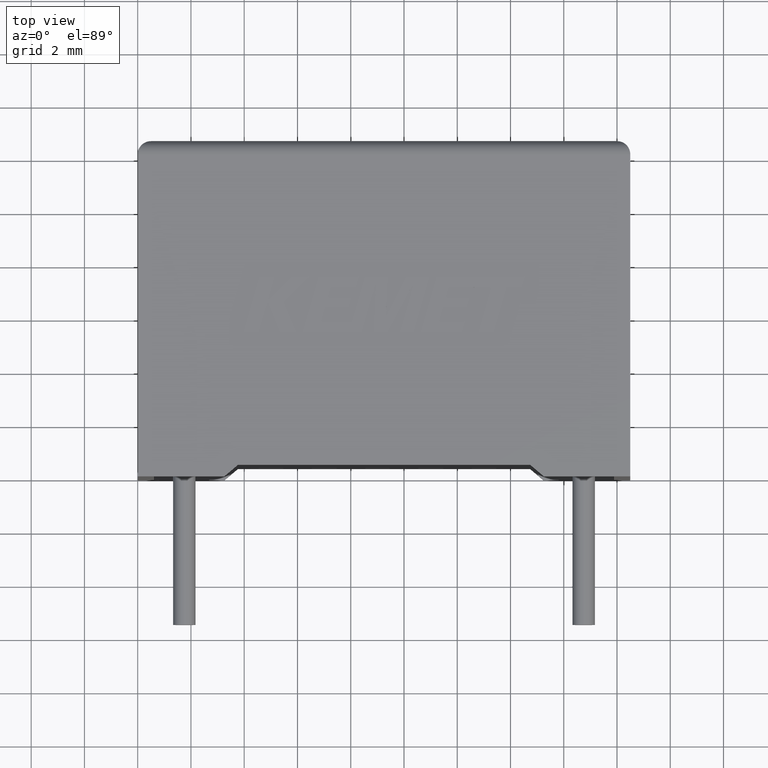
[diagram: clean part render]
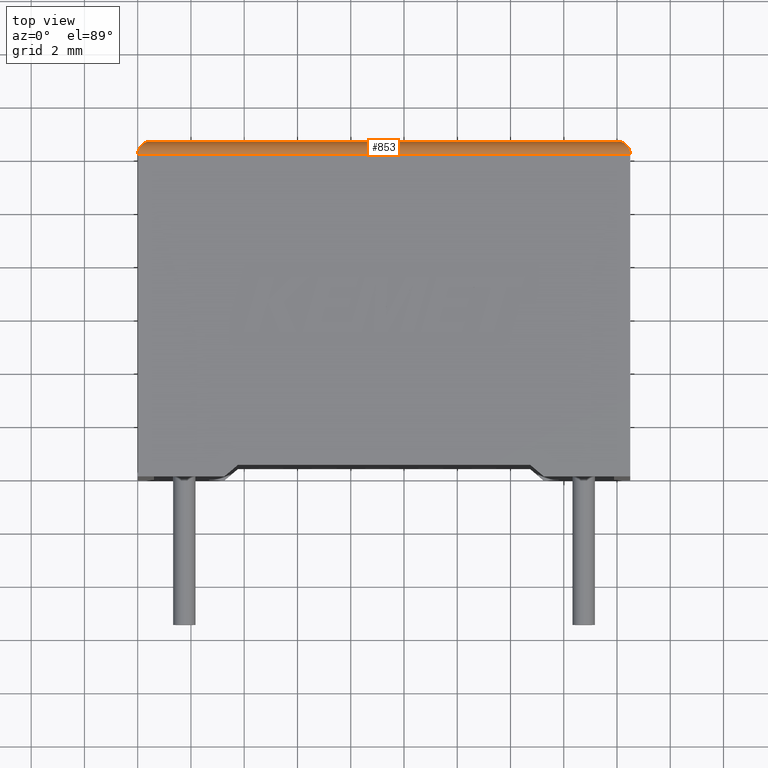
[diagram: same view with one face highlighted and labeled with its STEP entity id]
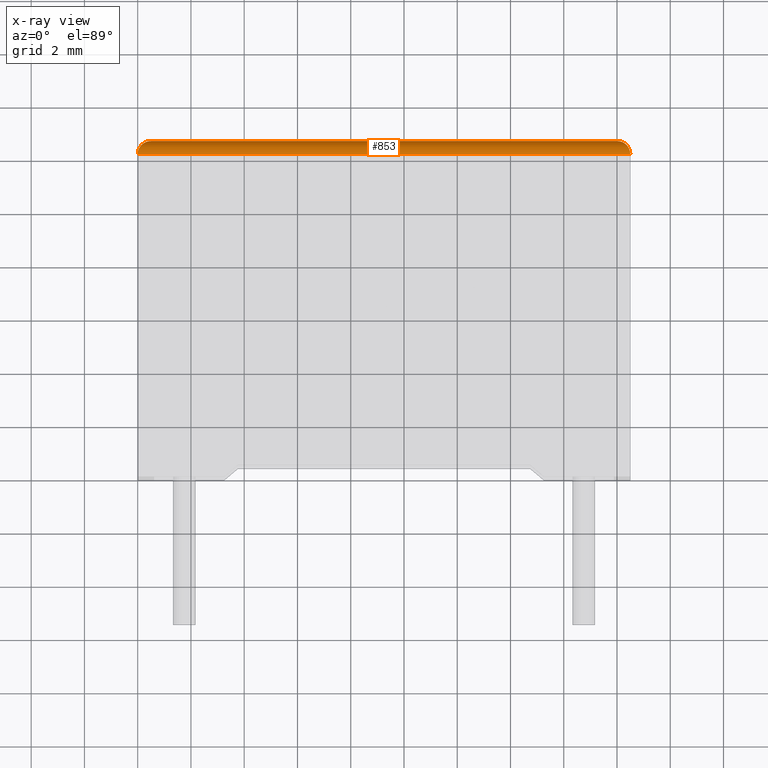
[diagram: x-ray of the same camera — body ghosted, the highlighted face saturated]
A machine part, top view. The second image highlights one B-rep face of the part: STEP entity #853.
The next image is the same camera in x-ray: the body ghosted, the highlighted face saturated — about 0% of this face is hidden behind the body in this view.
In plain terms, the highlighted cylindrical surface (edge-blend (fillet) strip) has radius 0.5 mm, axis along (-1, 0, 0).
Its self-contained STEP definition (entity closure, byte-faithful):
#21 = VECTOR ( 'NONE', #597, 1000.000000000000000 ) ;
#108 = AXIS2_PLACEMENT_3D ( 'NONE', #1175, #1003, #965 ) ;
#451 = FACE_OUTER_BOUND ( 'NONE', #2112, .T. ) ;
#552 = EDGE_CURVE ( 'NONE', #2448, #1392, #1306, .T. ) ;
#597 = DIRECTION ( 'NONE',  ( 1.000000000000000000, -0.000000000000000000, -0.000000000000000000 ) ) ;
#651 = CARTESIAN_POINT ( 'NONE',  ( 18.29289321881345032, 12.59999999999999609, 8.992893218813451384 ) ) ;
#664 = VECTOR ( 'NONE', #1843, 1000.000000000000000 ) ;
#675 = CYLINDRICAL_SURFACE ( 'NONE', #108, 0.5000000000000004441 ) ;
#845 = CARTESIAN_POINT ( 'NONE',  ( 18.00000000000000000, 12.59999999999999964, 8.699999999999999289 ) ) ;
#853 = ADVANCED_FACE ( 'NONE', ( #451 ), #675, .T. ) ;
#965 = DIRECTION ( 'NONE',  ( 0.000000000000000000, 0.000000000000000000, 1.000000000000000000 ) ) ;
#1003 = DIRECTION ( 'NONE',  ( -1.000000000000000000, 0.000000000000000000, 0.000000000000000000 ) ) ;
#1049 = CARTESIAN_POINT ( 'NONE',  ( 0.000000000000000000, 12.59999999999999964, 8.699999999999999289 ) ) ;
#1075 = LINE ( 'NONE', #1049, #21 ) ;
#1111 = CARTESIAN_POINT ( 'NONE',  ( 18.00000000000000000, 12.59999999999999964, 8.699999999999999289 ) ) ;
#1175 = CARTESIAN_POINT ( 'NONE',  ( 0.000000000000000000, 12.09999999999999964, 8.699999999999999289 ) ) ;
#1192 = ORIENTED_EDGE ( 'NONE', *, *, #2499, .F. ) ;
#1206 = ORIENTED_EDGE ( 'NONE', *, *, #2830, .F. ) ;
#1227 = CARTESIAN_POINT ( 'NONE',  ( 0.2071067811865475727, 12.59999999999999609, 8.992893218813451384 ) ) ;
#1231 = CARTESIAN_POINT ( 'NONE',  ( 0.000000000000000000, 12.09999999999999964, 9.199999999999999289 ) ) ;
#1306 =( BOUNDED_CURVE ( )  B_SPLINE_CURVE ( 3, ( #1596, #1341, #651, #1111 ),
 .UNSPECIFIED., .F., .T. ) 
 B_SPLINE_CURVE_WITH_KNOTS ( ( 4, 4 ),
 ( 3.141592653589793116, 4.712388980384689674 ),
 .UNSPECIFIED. ) 
 CURVE ( )  GEOMETRIC_REPRESENTATION_ITEM ( )  RATIONAL_B_SPLINE_CURVE ( ( 1.000000000000000000, 0.8047378541243649375, 0.8047378541243649375, 1.000000000000000000 ) ) 
 REPRESENTATION_ITEM ( '' )  );
#1341 = CARTESIAN_POINT ( 'NONE',  ( 18.50000000000000000, 12.39289321881345174, 9.199999999999999289 ) ) ;
#1388 = ORIENTED_EDGE ( 'NONE', *, *, #552, .T. ) ;
#1392 = VERTEX_POINT ( 'NONE', #845 ) ;
#1596 = CARTESIAN_POINT ( 'NONE',  ( 18.50000000000000000, 12.09999999999999964, 9.199999999999999289 ) ) ;
#1615 = CARTESIAN_POINT ( 'NONE',  ( 0.5000000000000000000, 12.59999999999999964, 8.699999999999999289 ) ) ;
#1631 = VERTEX_POINT ( 'NONE', #1615 ) ;
#1647 = ORIENTED_EDGE ( 'NONE', *, *, #2922, .F. ) ;
#1843 = DIRECTION ( 'NONE',  ( -1.000000000000000000, 0.000000000000000000, 0.000000000000000000 ) ) ;
#1926 = CARTESIAN_POINT ( 'NONE',  ( 0.000000000000000000, 12.09999999999999964, 9.199999999999999289 ) ) ;
#2052 = CARTESIAN_POINT ( 'NONE',  ( 0.000000000000000000, 12.09999999999999964, 9.199999999999999289 ) ) ;
#2069 = LINE ( 'NONE', #2052, #664 ) ;
#2112 = EDGE_LOOP ( 'NONE', ( #1388, #1192, #1206, #1647 ) ) ;
#2335 = VERTEX_POINT ( 'NONE', #1231 ) ;
#2403 = CARTESIAN_POINT ( 'NONE',  ( 0.5000000000000000000, 12.59999999999999964, 8.699999999999999289 ) ) ;
#2448 = VERTEX_POINT ( 'NONE', #2729 ) ;
#2499 = EDGE_CURVE ( 'NONE', #1631, #1392, #1075, .T. ) ;
#2640 = CARTESIAN_POINT ( 'NONE',  ( 1.084202172485504434E-16, 12.39289321881345174, 9.199999999999999289 ) ) ;
#2703 =( BOUNDED_CURVE ( )  B_SPLINE_CURVE ( 3, ( #1926, #2640, #1227, #2403 ),
 .UNSPECIFIED., .F., .T. ) 
 B_SPLINE_CURVE_WITH_KNOTS ( ( 4, 4 ),
 ( 0.000000000000000000, 1.570796326794896558 ),
 .UNSPECIFIED. ) 
 CURVE ( )  GEOMETRIC_REPRESENTATION_ITEM ( )  RATIONAL_B_SPLINE_CURVE ( ( 1.000000000000000000, 0.8047378541243649375, 0.8047378541243649375, 1.000000000000000000 ) ) 
 REPRESENTATION_ITEM ( '' )  );
#2729 = CARTESIAN_POINT ( 'NONE',  ( 18.50000000000000000, 12.09999999999999964, 9.199999999999999289 ) ) ;
#2830 = EDGE_CURVE ( 'NONE', #2335, #1631, #2703, .T. ) ;
#2922 = EDGE_CURVE ( 'NONE', #2448, #2335, #2069, .T. ) ;